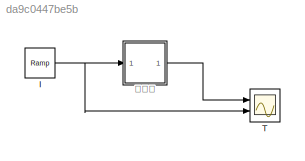
MODEL slx_da9c0447be5b
KIND model
CONFIG AbsTol = auto
CONFIG EnableMultiTasking = off
CONFIG FixedStep = auto
CONFIG MaxStep = auto
CONFIG MinStep = auto
CONFIG RelTol = 1e-3
CONFIG SampleTimeConstraint = Unconstrained
CONFIG Solver = VariableStepAuto
CONFIG SolverName = VariableStepAuto
CONFIG StartTime = 0.0
CONFIG StopTime = 10.0
BLOCK [Reference] I  REF=simulink/Sources/Ramp
  Ports = [0, 1]
  SourceBlock = simulink/Sources/Ramp
  SourceProductBaseCode = SL
  SourceProductName = Simulink
  SourceType = Ramp
BLOCK [Scope] T
  Floating = off
  NumInputPorts = 2
  Ports = [2]
  ScopeSpecificationString = Simulink.scopes.TimeScopeBlockCfg('CurrentConfiguration', extmgr.ConfigurationSet(extmgr.Configuration('Core','General UI',true),extmgr.Configuration('Core','Source UI',true),extmgr.Configuration('Sources','WiredSimulink',true),extmgr.Configuration('Visuals','Time Domain',true,'SerializedDisplays',{struct('MinYLimReal','-4.375','MaxYLimReal','39.375','YLabelReal','','MinYLimMag','0.00000','MaxYLim...<+1371ch>
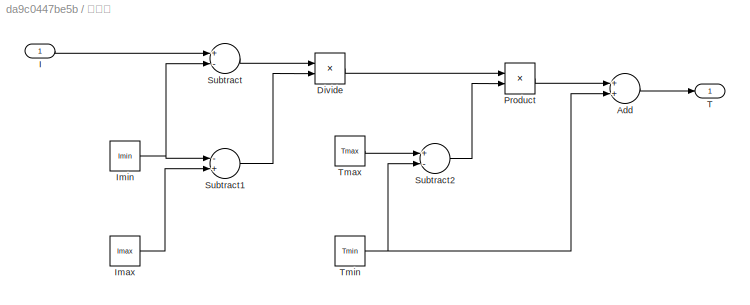
BLOCK [SubSystem] 传感器
  Ports = [1, 1]
  RequestExecContextInheritance = off
BLOCK [Sum] 传感器/Add
  InputSameDT = off
  OutDataTypeStr = Inherit: Inherit via internal rule
  Ports = [2, 1]
  SaturateOnIntegerOverflow = off
BLOCK [Product] 传感器/Divide
  InputSameDT = off
  Inputs = */
  OutDataTypeStr = Inherit: Inherit via internal rule
  Ports = [2, 1]
  RndMeth = Floor
  SaturateOnIntegerOverflow = off
BLOCK [Inport] 传感器/I
  IconDisplay = Port number
BLOCK [Constant] 传感器/Imax
  Value = Imax
BLOCK [Constant] 传感器/Imin
  Value = Imin
BLOCK [Product] 传感器/Product
  InputSameDT = off
  OutDataTypeStr = Inherit: Inherit via internal rule
  Ports = [2, 1]
  RndMeth = Floor
  SaturateOnIntegerOverflow = off
BLOCK [Sum] 传感器/Subtract
  InputSameDT = off
  Inputs = +-
  OutDataTypeStr = Inherit: Inherit via internal rule
  Ports = [2, 1]
  SaturateOnIntegerOverflow = off
BLOCK [Sum] 传感器/Subtract1
  InputSameDT = off
  Inputs = -+
  OutDataTypeStr = Inherit: Inherit via internal rule
  Ports = [2, 1]
  SaturateOnIntegerOverflow = off
BLOCK [Sum] 传感器/Subtract2
  InputSameDT = off
  Inputs = +-
  OutDataTypeStr = Inherit: Inherit via internal rule
  Ports = [2, 1]
  SaturateOnIntegerOverflow = off
BLOCK [Outport] 传感器/T
  IconDisplay = Port number
BLOCK [Constant] 传感器/Tmax
  Value = Tmax
BLOCK [Constant] 传感器/Tmin
  Value = Tmin
NET I:1 -> T:2, 传感器:1
LINE 传感器/Add:1 -> 传感器/T:1
LINE 传感器/Divide:1 -> 传感器/Product:1
LINE 传感器/I:1 -> 传感器/Subtract:1
LINE 传感器/Imax:1 -> 传感器/Subtract1:2
NET 传感器/Imin:1 -> 传感器/Subtract1:1, 传感器/Subtract:2
LINE 传感器/Product:1 -> 传感器/Add:1
LINE 传感器/Subtract1:1 -> 传感器/Divide:2
LINE 传感器/Subtract2:1 -> 传感器/Product:2
LINE 传感器/Subtract:1 -> 传感器/Divide:1
LINE 传感器/Tmax:1 -> 传感器/Subtract2:1
NET 传感器/Tmin:1 -> 传感器/Add:2, 传感器/Subtract2:2
LINE 传感器:1 -> T:1
note: NET lines group one-source signal fan-out (src -> all destinations, sorted); 1:1 wires keep LINE
